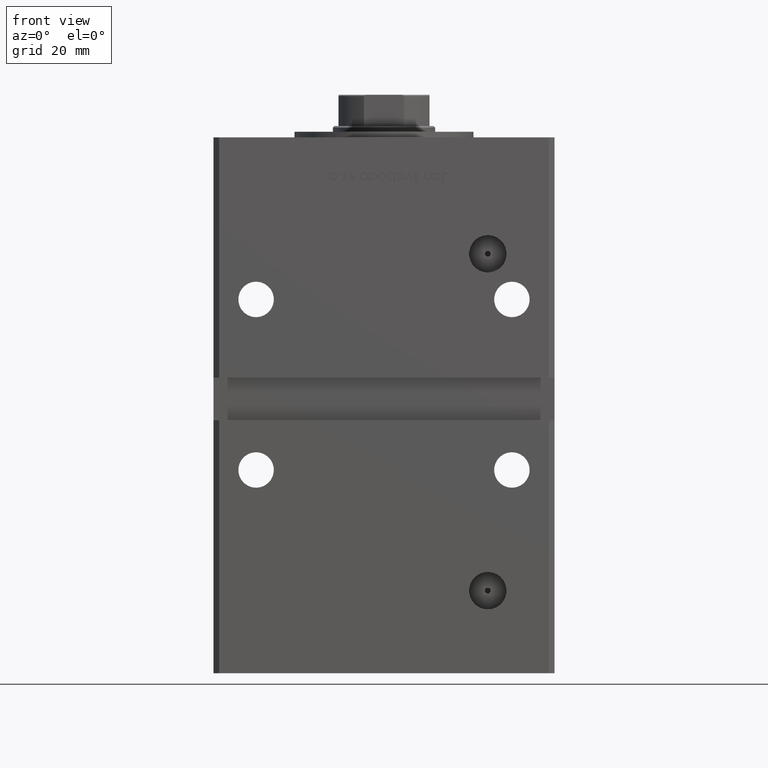
[diagram: clean part render]
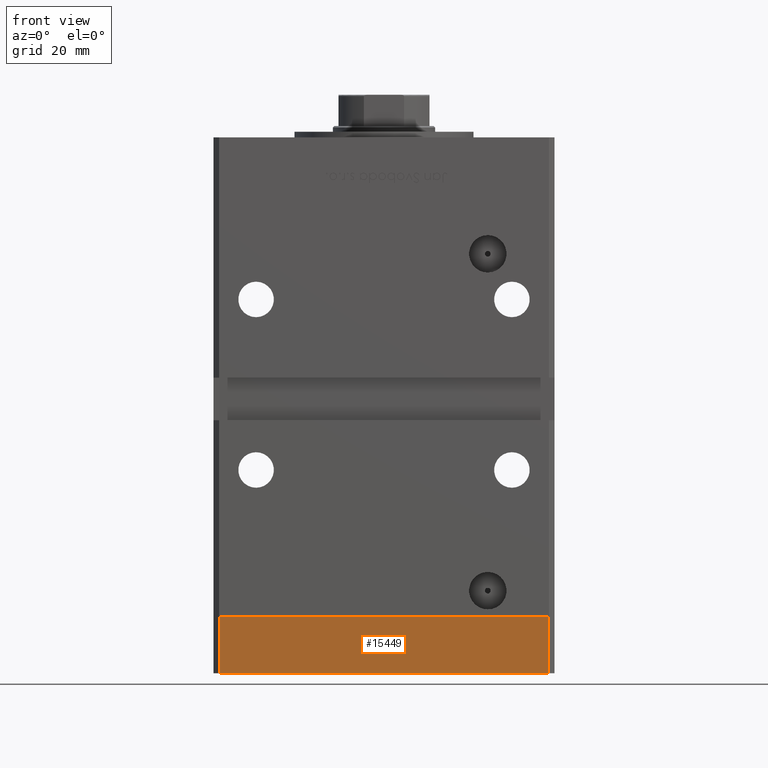
[diagram: same view with one face highlighted and labeled with its STEP entity id]
A machine part, front view. The second image highlights one B-rep face of the part: STEP entity #15449.
In plain terms, the highlighted planar face has unit normal (0, -1, -0).
Its self-contained STEP definition (entity closure, byte-faithful):
#229 = ORIENTED_EDGE ( 'NONE', *, *, #23889, .T. ) ;
#1610 = CARTESIAN_POINT ( 'NONE',  ( -57.99999999999997868, -51.00000000000001421, 0.000000000000000000 ) ) ;
#1867 = PLANE ( 'NONE',  #3542 ) ;
#3542 = AXIS2_PLACEMENT_3D ( 'NONE', #18198, #30274, #34308 ) ;
#5116 = CARTESIAN_POINT ( 'NONE',  ( -57.99999999999997868, -51.00000000000001421, -20.00000000000000000 ) ) ;
#7394 = VERTEX_POINT ( 'NONE', #31971 ) ;
#9738 = VECTOR ( 'NONE', #15052, 1000.000000000000000 ) ;
#9811 = LINE ( 'NONE', #14359, #27559 ) ;
#11734 = EDGE_LOOP ( 'NONE', ( #28011, #45947, #27492, #229 ) ) ;
#14359 = CARTESIAN_POINT ( 'NONE',  ( -57.99999999999997868, -51.00000000000001421, -20.00000000000000000 ) ) ;
#14662 = EDGE_CURVE ( 'NONE', #35366, #7394, #9811, .T. ) ;
#15052 = DIRECTION ( 'NONE',  ( 0.000000000000000000, 0.000000000000000000, 1.000000000000000000 ) ) ;
#15449 = ADVANCED_FACE ( 'NONE', ( #42871 ), #1867, .T. ) ;
#18198 = CARTESIAN_POINT ( 'NONE',  ( -57.99999999999997868, -51.00000000000001421, -20.00000000000000000 ) ) ;
#18971 = CARTESIAN_POINT ( 'NONE',  ( 58.00000000000000000, -51.00000000000000711, 0.000000000000000000 ) ) ;
#21442 = DIRECTION ( 'NONE',  ( 1.000000000000000000, 1.196361017915039486E-16, 0.000000000000000000 ) ) ;
#23608 = CARTESIAN_POINT ( 'NONE',  ( 58.00000000000000000, -51.00000000000000711, -20.00000000000000000 ) ) ;
#23889 = EDGE_CURVE ( 'NONE', #44583, #38875, #31675, .T. ) ;
#23964 = VECTOR ( 'NONE', #46649, 1000.000000000000000 ) ;
#24951 = EDGE_CURVE ( 'NONE', #35366, #44583, #41844, .T. ) ;
#27492 = ORIENTED_EDGE ( 'NONE', *, *, #24951, .T. ) ;
#27559 = VECTOR ( 'NONE', #50822, 1000.000000000000000 ) ;
#28011 = ORIENTED_EDGE ( 'NONE', *, *, #50208, .F. ) ;
#30274 = DIRECTION ( 'NONE',  ( 1.196361017915039486E-16, -1.000000000000000000, 0.000000000000000000 ) ) ;
#31675 = LINE ( 'NONE', #23608, #9738 ) ;
#31971 = CARTESIAN_POINT ( 'NONE',  ( -57.99999999999997868, -51.00000000000001421, 0.000000000000000000 ) ) ;
#34308 = DIRECTION ( 'NONE',  ( 1.000000000000000000, 1.196361017915039486E-16, 0.000000000000000000 ) ) ;
#35366 = VERTEX_POINT ( 'NONE', #49335 ) ;
#38875 = VERTEX_POINT ( 'NONE', #18971 ) ;
#41834 = LINE ( 'NONE', #1610, #23964 ) ;
#41844 = LINE ( 'NONE', #5116, #52585 ) ;
#42871 = FACE_OUTER_BOUND ( 'NONE', #11734, .T. ) ;
#44583 = VERTEX_POINT ( 'NONE', #45296 ) ;
#45296 = CARTESIAN_POINT ( 'NONE',  ( 58.00000000000000000, -51.00000000000000711, -20.00000000000000000 ) ) ;
#45947 = ORIENTED_EDGE ( 'NONE', *, *, #14662, .F. ) ;
#46649 = DIRECTION ( 'NONE',  ( 1.000000000000000000, 1.196361017915039486E-16, 0.000000000000000000 ) ) ;
#49335 = CARTESIAN_POINT ( 'NONE',  ( -57.99999999999997868, -51.00000000000001421, -20.00000000000000000 ) ) ;
#50208 = EDGE_CURVE ( 'NONE', #7394, #38875, #41834, .T. ) ;
#50822 = DIRECTION ( 'NONE',  ( 0.000000000000000000, 0.000000000000000000, 1.000000000000000000 ) ) ;
#52585 = VECTOR ( 'NONE', #21442, 1000.000000000000000 ) ;